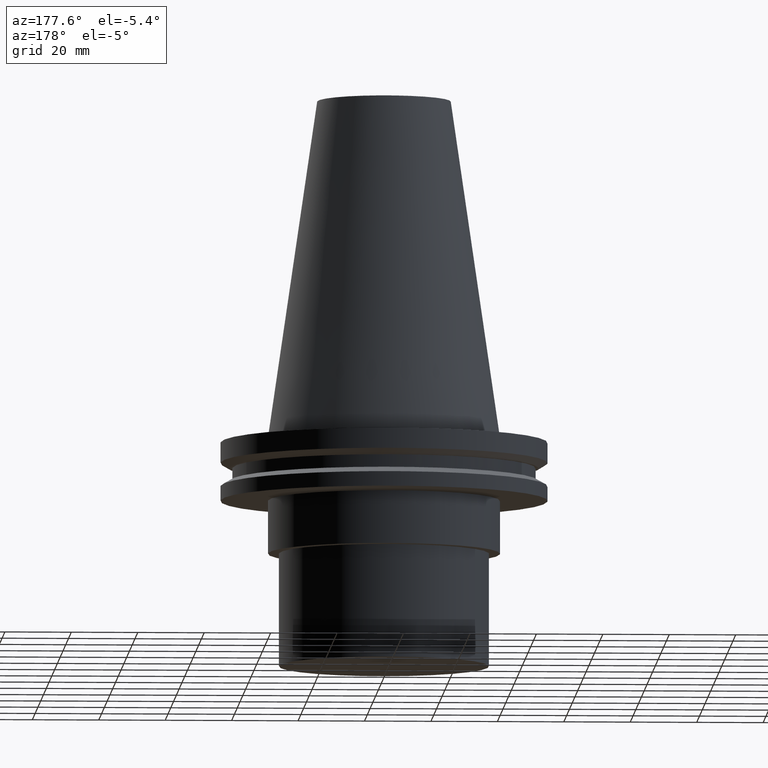
[diagram: clean part render]
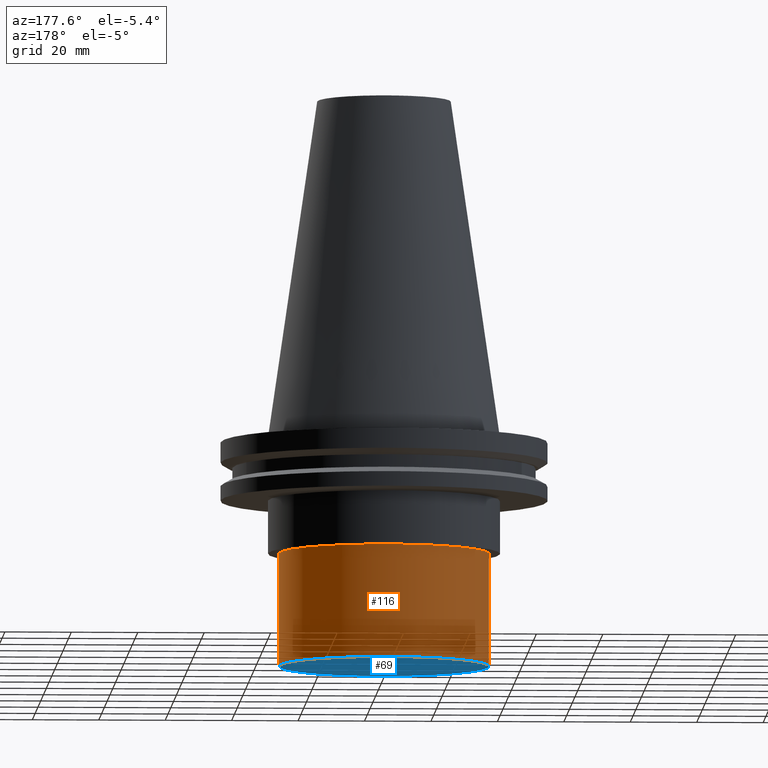
[diagram: same view with the hole feature highlighted: cylindrical wall and planar end face, labeled with their STEP entity ids]
A machine part, auxiliary view. The highlighted faces form one hole feature of diameter 63.27 mm: the cylindrical wall (entity #116, orange) and its adjacent planar end face (entity #69, blue) — they share a circular edge in the B-rep.
Wall:
#20 = ORIENTED_EDGE ( 'NONE', *, *, #72, .F. ) ;
#22 = CARTESIAN_POINT ( 'NONE',  ( 31.63500000000000512, 0.000000000000000000, -69.00000000000001421 ) ) ;
#27 = VERTEX_POINT ( 'NONE', #22 ) ;
#35 = FACE_OUTER_BOUND ( 'NONE', #169, .T. ) ;
#44 = DIRECTION ( 'NONE',  ( 1.000000000000000000, 0.000000000000000000, 0.000000000000000000 ) ) ;
#64 = FACE_OUTER_BOUND ( 'NONE', #262, .T. ) ;
#72 = EDGE_CURVE ( 'NONE', #165, #165, #306, .T. ) ;
#98 = DIRECTION ( 'NONE',  ( 1.000000000000000000, 0.000000000000000000, 0.000000000000000000 ) ) ;
#116 = ADVANCED_FACE ( 'NONE', ( #64, #35 ), #308, .T. ) ;
#127 = DIRECTION ( 'NONE',  ( -0.000000000000000000, -0.000000000000000000, 1.000000000000000000 ) ) ;
#134 = CARTESIAN_POINT ( 'NONE',  ( 31.63500000000000512, 0.000000000000000000, -35.00000000000000000 ) ) ;
#151 = ORIENTED_EDGE ( 'NONE', *, *, #326, .T. ) ;
#158 = CARTESIAN_POINT ( 'NONE',  ( 0.000000000000000000, 0.000000000000000000, 0.000000000000000000 ) ) ;
#165 = VERTEX_POINT ( 'NONE', #134 ) ;
#169 = EDGE_LOOP ( 'NONE', ( #151 ) ) ;
#198 = AXIS2_PLACEMENT_3D ( 'NONE', #158, #278, #315 ) ;
#250 = CARTESIAN_POINT ( 'NONE',  ( 0.000000000000000000, 0.000000000000000000, -35.00000000000000000 ) ) ;
#262 = EDGE_LOOP ( 'NONE', ( #20 ) ) ;
#278 = DIRECTION ( 'NONE',  ( -0.000000000000000000, -0.000000000000000000, 1.000000000000000000 ) ) ;
#282 = AXIS2_PLACEMENT_3D ( 'NONE', #348, #287, #44 ) ;
#287 = DIRECTION ( 'NONE',  ( -0.000000000000000000, -0.000000000000000000, 1.000000000000000000 ) ) ;
#298 = CIRCLE ( 'NONE', #282, 31.63500000000000512 ) ;
#306 = CIRCLE ( 'NONE', #380, 31.63500000000000512 ) ;
#308 = CYLINDRICAL_SURFACE ( 'NONE', #198, 31.63500000000000512 ) ;
#315 = DIRECTION ( 'NONE',  ( 1.000000000000000000, 0.000000000000000000, 0.000000000000000000 ) ) ;
#326 = EDGE_CURVE ( 'NONE', #27, #27, #298, .T. ) ;
#348 = CARTESIAN_POINT ( 'NONE',  ( 0.000000000000000000, 0.000000000000000000, -69.00000000000001421 ) ) ;
#380 = AXIS2_PLACEMENT_3D ( 'NONE', #250, #127, #98 ) ;
End face:
#5 = PLANE ( 'NONE',  #170 ) ;
#22 = CARTESIAN_POINT ( 'NONE',  ( 31.63500000000000512, 0.000000000000000000, -69.00000000000001421 ) ) ;
#27 = VERTEX_POINT ( 'NONE', #22 ) ;
#44 = DIRECTION ( 'NONE',  ( 1.000000000000000000, 0.000000000000000000, 0.000000000000000000 ) ) ;
#69 = ADVANCED_FACE ( 'NONE', ( #219 ), #5, .F. ) ;
#129 = DIRECTION ( 'NONE',  ( 1.000000000000000000, 0.000000000000000000, 0.000000000000000000 ) ) ;
#170 = AXIS2_PLACEMENT_3D ( 'NONE', #309, #187, #129 ) ;
#187 = DIRECTION ( 'NONE',  ( 0.000000000000000000, -0.000000000000000000, 1.000000000000000000 ) ) ;
#219 = FACE_OUTER_BOUND ( 'NONE', #296, .T. ) ;
#282 = AXIS2_PLACEMENT_3D ( 'NONE', #348, #287, #44 ) ;
#287 = DIRECTION ( 'NONE',  ( -0.000000000000000000, -0.000000000000000000, 1.000000000000000000 ) ) ;
#296 = EDGE_LOOP ( 'NONE', ( #332 ) ) ;
#298 = CIRCLE ( 'NONE', #282, 31.63500000000000512 ) ;
#309 = CARTESIAN_POINT ( 'NONE',  ( 0.000000000000000000, 31.63500000000000512, -69.00000000000000000 ) ) ;
#326 = EDGE_CURVE ( 'NONE', #27, #27, #298, .T. ) ;
#332 = ORIENTED_EDGE ( 'NONE', *, *, #326, .F. ) ;
#348 = CARTESIAN_POINT ( 'NONE',  ( 0.000000000000000000, 0.000000000000000000, -69.00000000000001421 ) ) ;